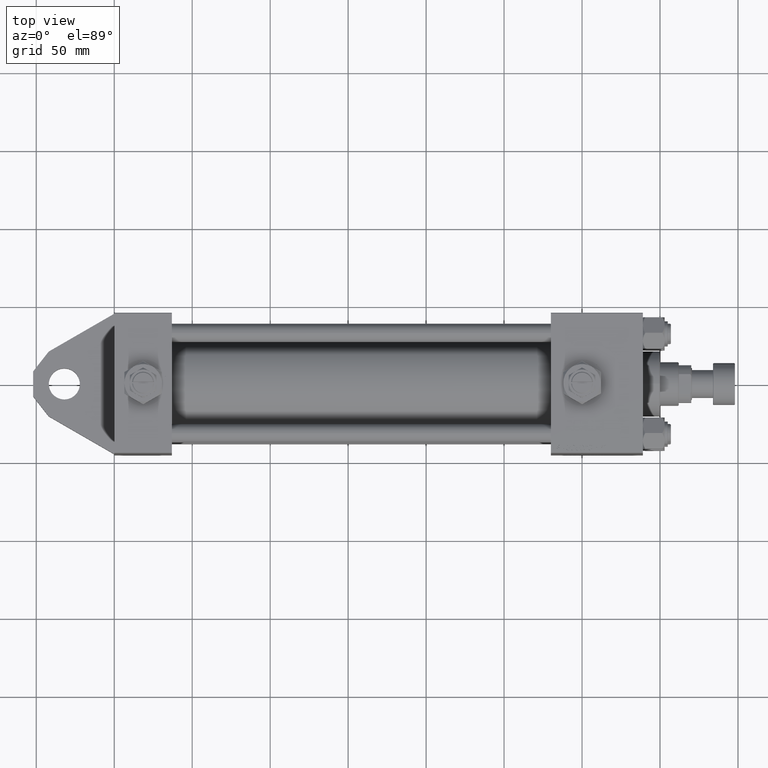
[diagram: clean part render]
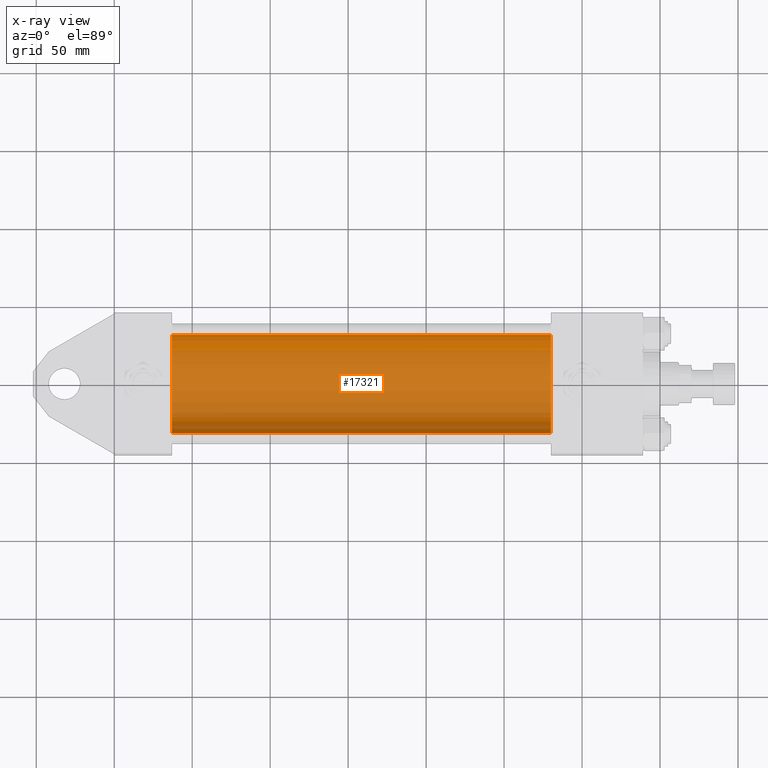
[diagram: x-ray — body ghosted, one internal face saturated and labeled with its STEP entity id]
A machine part, top view, then the same camera in x-ray: the body is ghosted and one INTERNAL B-rep face — a face not visible from any outside direction — is saturated and labeled: STEP entity #17321.
In plain terms, the highlighted cylindrical surface (partial cylindrical patch) has radius 31.5 mm, axis along (-1, -0, 0).
Its self-contained STEP definition (entity closure, byte-faithful):
#1170 = CARTESIAN_POINT ( 'NONE',  ( 37.00000000000000000, -2.602085213965210642E-15, 31.50000000000000000 ) ) ;
#1707 = CARTESIAN_POINT ( 'NONE',  ( 279.9999999999999432, 1.255552203348951850E-15, -31.50000000000000000 ) ) ;
#5439 = FACE_OUTER_BOUND ( 'NONE', #29668, .T. ) ;
#5763 = ORIENTED_EDGE ( 'NONE', *, *, #29688, .T. ) ;
#7163 = DIRECTION ( 'NONE',  ( 0.000000000000000000, 0.000000000000000000, -1.000000000000000000 ) ) ;
#8598 = EDGE_CURVE ( 'NONE', #41376, #26965, #20393, .T. ) ;
#8810 = VERTEX_POINT ( 'NONE', #1170 ) ;
#10903 = CARTESIAN_POINT ( 'NONE',  ( 37.00000000000000000, 1.255552203348951850E-15, -31.50000000000000000 ) ) ;
#13433 = VECTOR ( 'NONE', #18693, 1000.000000000000000 ) ;
#14955 = CYLINDRICAL_SURFACE ( 'NONE', #15642, 31.50000000000000000 ) ;
#15642 = AXIS2_PLACEMENT_3D ( 'NONE', #29972, #33188, #44943 ) ;
#17321 = ADVANCED_FACE ( 'NONE', ( #5439 ), #14955, .F. ) ;
#18199 = CIRCLE ( 'NONE', #20560, 31.50000000000000000 ) ;
#18693 = DIRECTION ( 'NONE',  ( -1.000000000000000000, -0.000000000000000000, -0.000000000000000000 ) ) ;
#20393 = LINE ( 'NONE', #1707, #36640 ) ;
#20560 = AXIS2_PLACEMENT_3D ( 'NONE', #36682, #33241, #7163 ) ;
#23935 = EDGE_CURVE ( 'NONE', #8810, #26965, #18199, .T. ) ;
#24118 = ORIENTED_EDGE ( 'NONE', *, *, #23935, .F. ) ;
#24611 = CARTESIAN_POINT ( 'NONE',  ( 279.9999999999999432, -2.602085213965210642E-15, 0.000000000000000000 ) ) ;
#26965 = VERTEX_POINT ( 'NONE', #10903 ) ;
#28862 = CARTESIAN_POINT ( 'NONE',  ( 279.9999999999999432, -2.602085213965210642E-15, 31.50000000000000000 ) ) ;
#29668 = EDGE_LOOP ( 'NONE', ( #5763, #34748, #24118, #38852 ) ) ;
#29688 = EDGE_CURVE ( 'NONE', #39171, #41376, #34900, .T. ) ;
#29972 = CARTESIAN_POINT ( 'NONE',  ( 279.9999999999999432, -2.602085213965210642E-15, 0.000000000000000000 ) ) ;
#30474 = CARTESIAN_POINT ( 'NONE',  ( 279.9999999999999432, 1.255552203348951850E-15, -31.50000000000000000 ) ) ;
#31091 = EDGE_CURVE ( 'NONE', #39171, #8810, #33456, .T. ) ;
#32003 = DIRECTION ( 'NONE',  ( 1.000000000000000000, 0.000000000000000000, 0.000000000000000000 ) ) ;
#33188 = DIRECTION ( 'NONE',  ( -1.000000000000000000, -0.000000000000000000, -0.000000000000000000 ) ) ;
#33241 = DIRECTION ( 'NONE',  ( 1.000000000000000000, 0.000000000000000000, 0.000000000000000000 ) ) ;
#33456 = LINE ( 'NONE', #44257, #13433 ) ;
#34748 = ORIENTED_EDGE ( 'NONE', *, *, #8598, .T. ) ;
#34900 = CIRCLE ( 'NONE', #38825, 31.50000000000000000 ) ;
#36640 = VECTOR ( 'NONE', #46682, 1000.000000000000000 ) ;
#36682 = CARTESIAN_POINT ( 'NONE',  ( 37.00000000000000000, -2.602085213965210642E-15, 0.000000000000000000 ) ) ;
#38825 = AXIS2_PLACEMENT_3D ( 'NONE', #24611, #32003, #39364 ) ;
#38852 = ORIENTED_EDGE ( 'NONE', *, *, #31091, .F. ) ;
#39171 = VERTEX_POINT ( 'NONE', #28862 ) ;
#39364 = DIRECTION ( 'NONE',  ( 0.000000000000000000, 0.000000000000000000, -1.000000000000000000 ) ) ;
#41376 = VERTEX_POINT ( 'NONE', #30474 ) ;
#44257 = CARTESIAN_POINT ( 'NONE',  ( 279.9999999999999432, -2.602085213965210642E-15, 31.50000000000000000 ) ) ;
#44943 = DIRECTION ( 'NONE',  ( 0.000000000000000000, 0.000000000000000000, 1.000000000000000000 ) ) ;
#46682 = DIRECTION ( 'NONE',  ( -1.000000000000000000, -0.000000000000000000, -0.000000000000000000 ) ) ;